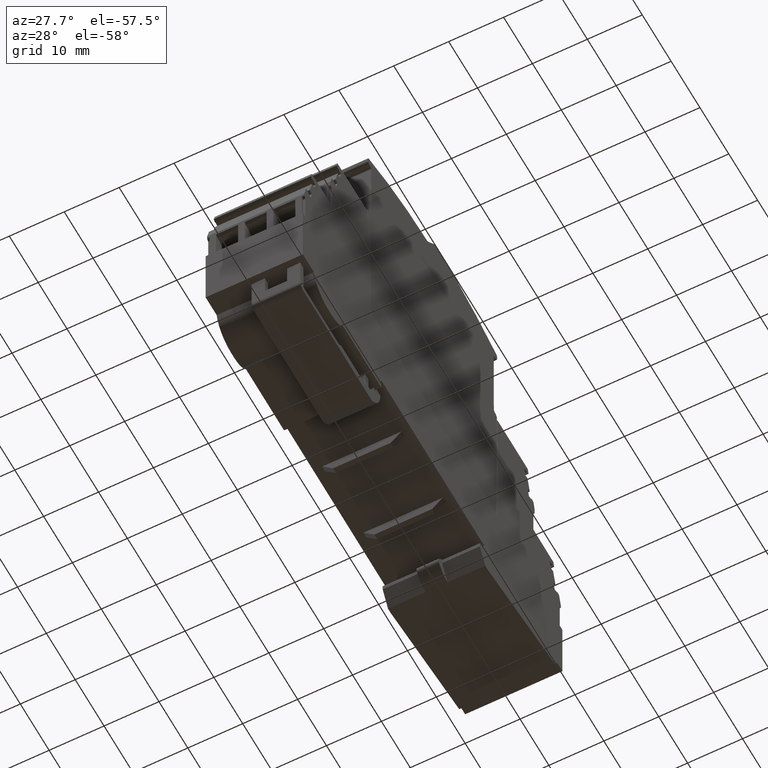
[diagram: clean part render]
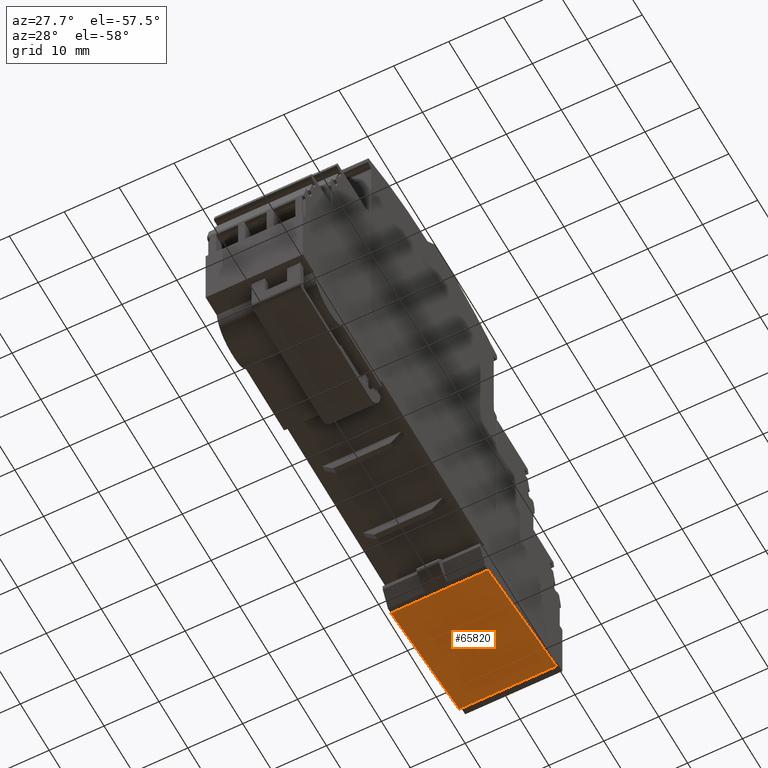
[diagram: same view with one face highlighted and labeled with its STEP entity id]
A machine part, auxiliary view. The second image highlights one B-rep face of the part: STEP entity #65820.
In plain terms, the highlighted planar face has unit normal (0, -0.1736, 0.9848).
Its self-contained STEP definition (entity closure, byte-faithful):
#23200=CARTESIAN_POINT('',(138.984266225645,154.219310658872,
81.7845950408121));
#23210=VERTEX_POINT('',#23200);
#23240=CARTESIAN_POINT('',(35.5305381208503,136.349640084678,
82.1457181433168));
#23250=DIRECTION('',(-0.985401895041357,-0.170209499166032,
0.00343971547541414));
#23260=VECTOR('',#23250,1.);
#23270=LINE('',#23240,#23260);
#23280=CARTESIAN_POINT('',(115.213010763526,150.113276859754,
81.8675727128609));
#23290=VERTEX_POINT('',#23280);
#23300=EDGE_CURVE('',#23210,#23290,#23270,.T.);
#49160=CARTESIAN_POINT('',(115.151226233477,150.113276859754,
64.167680547318));
#49170=VERTEX_POINT('',#49160);
#49200=CARTESIAN_POINT('',(35.4687535908009,136.349640084678,
64.4458259777739));
#49210=DIRECTION('',(0.985401895041357,0.170209499166032,
-0.00343971547541414));
#49220=VECTOR('',#49210,1.);
#49230=LINE('',#49200,#49220);
#49240=CARTESIAN_POINT('',(138.922481695596,154.219310658872,
64.0847028752692));
#49250=VERTEX_POINT('',#49240);
#49260=EDGE_CURVE('',#49170,#49250,#49230,.T.);
#62520=CARTESIAN_POINT('',(139.101377580626,154.219310658872,
115.334390642823));
#62530=DIRECTION('',(-0.00349065141522385,-4.72809693627286E-16,
-0.999993907657791));
#62540=VECTOR('',#62530,1.);
#62550=LINE('',#62520,#62540);
#62560=EDGE_CURVE('',#23210,#49250,#62550,.T.);
#65660=CARTESIAN_POINT('',(115.677658375473,150.204208033811,
64.1658429450213));
#65670=DIRECTION('',(-0.170208462191516,0.98540789848349,
0.000594142029147987));
#65680=DIRECTION('',(-0.985401895041357,-0.170209499166032,
0.00343971547541414));
#65690=AXIS2_PLACEMENT_3D('',#65660,#65670,#65680);
#65700=PLANE('',#65690);
#65710=ORIENTED_EDGE('',*,*,#23300,.T.);
#65720=ORIENTED_EDGE('',*,*,#62560,.F.);
#65730=ORIENTED_EDGE('',*,*,#49260,.T.);
#65740=CARTESIAN_POINT('',(115.330122118507,150.113276859754,
115.417368314872));
#65750=DIRECTION('',(0.00349065141522385,4.72072774963175E-16,
0.999993907657791));
#65760=VECTOR('',#65750,1.);
#65770=LINE('',#65740,#65760);
#65780=EDGE_CURVE('',#49170,#23290,#65770,.T.);
#65790=ORIENTED_EDGE('',*,*,#65780,.F.);
#65800=EDGE_LOOP('',(#65790,#65730,#65720,#65710));
#65810=FACE_OUTER_BOUND('',#65800,.T.);
#65820=ADVANCED_FACE('',(#65810),#65700,.F.);